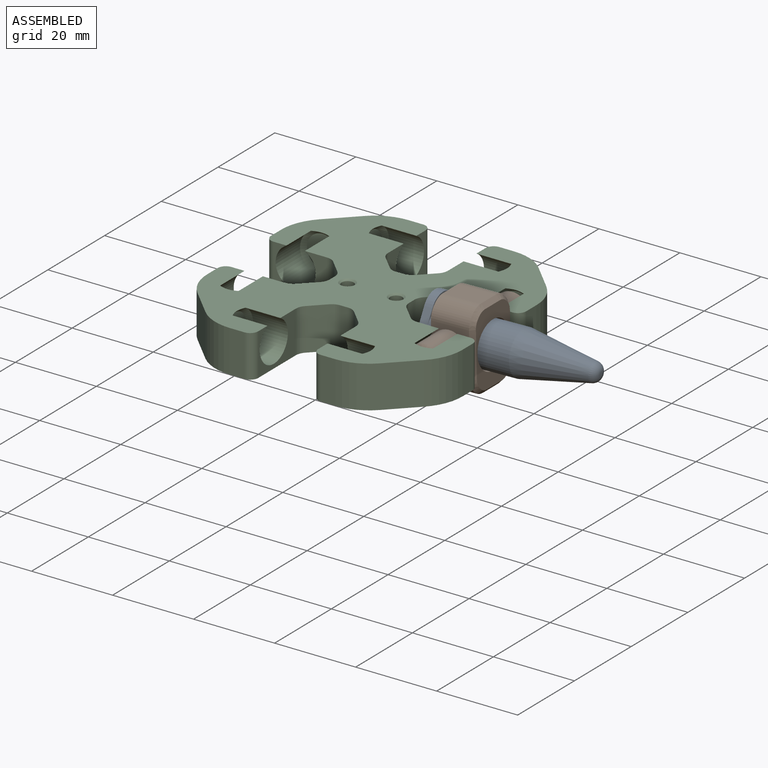
[diagram: assembled view]
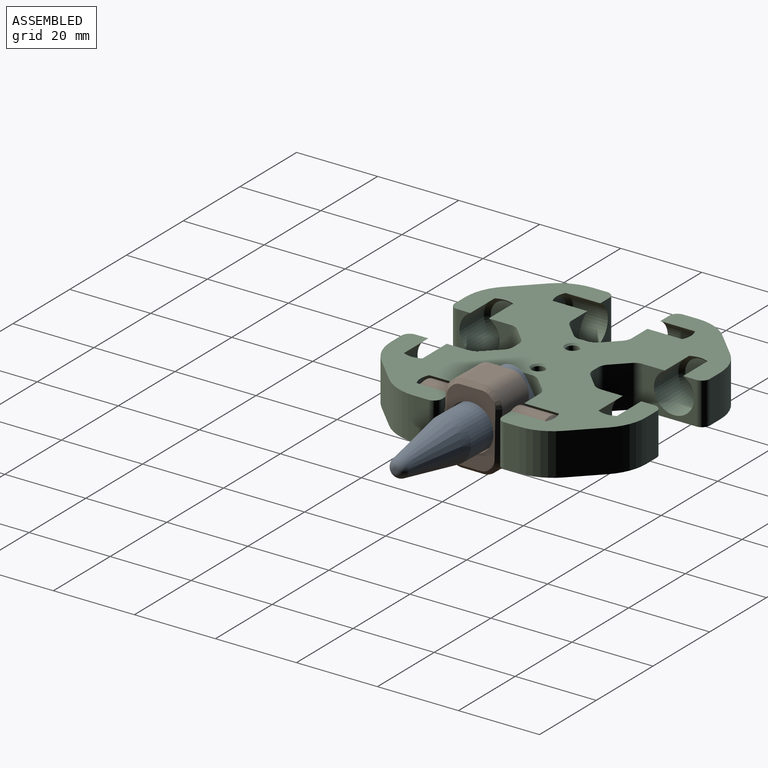
[diagram: assembled view, second angle]
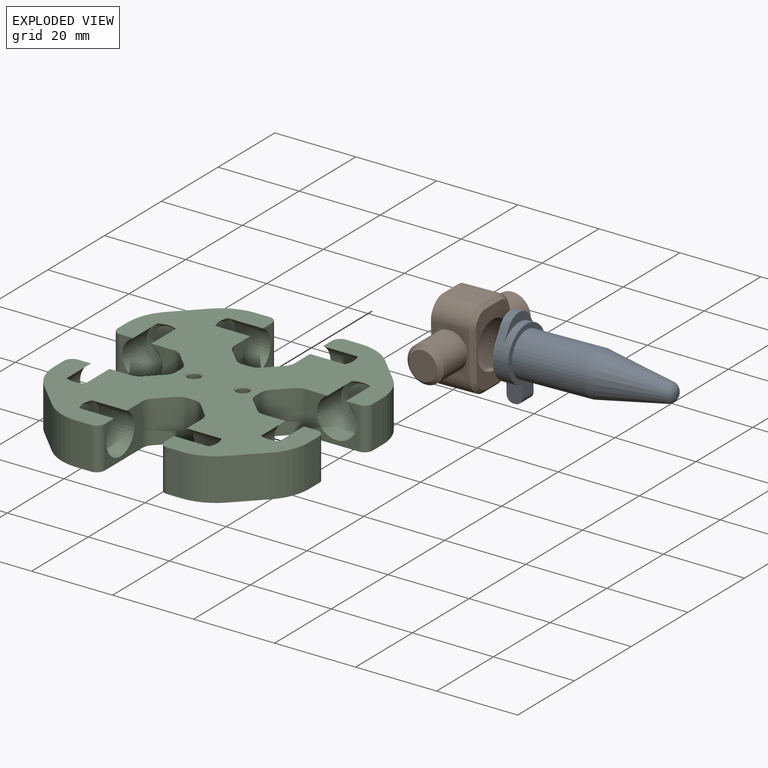
[diagram: exploded view]
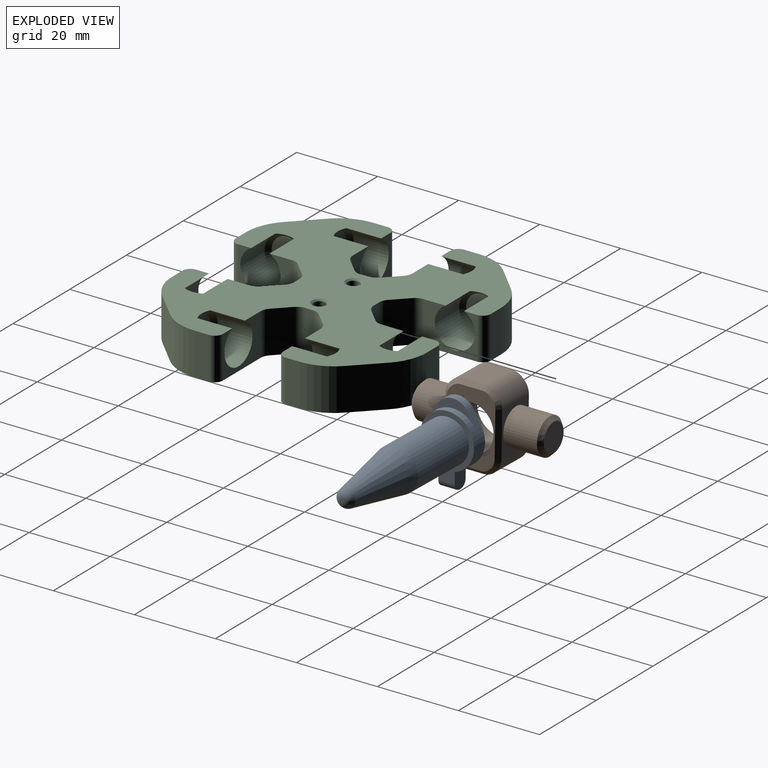
[diagram: exploded view, second angle]
ASSEMBLY  parts=3 mates=2
PART A: 16 faces, bbox 13.3x19.6x40.9 mm
  f0: cylinder r=6.65mm len=13.3mm, axis (0,0,-1), area 117.3mm2, adj f2,f3,f4,f5,f8,f9,f10
  f1: cylinder r=4.42mm len=7.62mm, axis (0,0,-1), area 19mm2, adj f2,f3,f4,f8
  f2: plane 3.28x2.07mm, normal (-0.86,0.51,0), area 7.9mm2, adj f0,f1,f4,f8
  f3: plane 3.28x2.07mm, normal (0.86,0.51,0), area 7.9mm2, adj f0,f1,f4,f8
  f4: plane 17.9x13.3mm, normal (0,0,1), area 165.5mm2, adj f0,f1,f2,f3,f9,f10,f13
  f5: plane 15.72x13.3mm, normal (0,0,-1), area 57.8mm2, adj f0,f6,f9,f10,f12
  f6: cylinder r=5.39mm len=18mm, axis (0,0,1), area 609.6mm2, adj f5,f14
  f7: plane 0.72x0.72mm, normal (0,0,-1), area 0.4mm2, adj f15
  f8: plane 11.47x5.46mm, normal (0,0,-1), area 16.4mm2, adj f0,f1,f2,f3
  f9: plane 4.42x3.87mm, normal (1,0,0), area 15.9mm2, adj f0,f4,f5,f11,f12,f13
  f10: plane 4.42x3.87mm, normal (-1,0,0), area 15.9mm2, adj f0,f4,f5,f11,f12,f13
  f11: plane 4.01x0.49mm, normal (0,-1,0), area 2mm2, adj f9,f10,f12,f13
  f12: cylinder r=1.69mm len=4.01mm, axis (1,0,0), area 10.6mm2, adj f5,f9,f10,f11
  f13: cylinder r=1.69mm len=4.01mm, axis (1,0,0), area 10.6mm2, adj f4,f9,f10,f11
  f14: cone r=5.39mm half-angle=10deg, axis (0,0,1), area 427.3mm2, adj f6,f15
  f15: torus R=0.36mm, axis (0,0,1), area 27.1mm2, adj f7,f14
PART B: 41 faces, bbox 32.7x19.9x10.6 mm
  f0: cylinder r=4.5mm len=9mm, axis (-1,0,0), area 218.9mm2, adj f2,f3,f16
  f1: plane 7x7mm, normal (1,0,0), area 38.5mm2, adj f16
  f2: plane 30.88x19.87mm, normal (0,0,-1), area 191.2mm2, adj f0,f3,f4,f5,f6,f9,f10,f11
  f3: plane 11.09x9.4mm, normal (1,0,0), area 40.7mm2, adj f0,f2,f19,f20,f33
  f4: plane 9.4x5.29mm, normal (0,1,0), area 49.7mm2, adj f2,f17,f18,f25
  f5: plane 11.09x9.4mm, normal (-1,0,0), area 40.7mm2, adj f2,f9,f23,f24,f32
  f6: plane 9.4x5.29mm, normal (0,-1,0), area 49.7mm2, adj f2,f21,f22,f40
  f7: plane 17.8x12mm, normal (0,0,1), area 102.8mm2, adj f10,f25,f26,f27,f28,f29,f30,f31
  f8: plane 7x7mm, normal (-1,0,0), area 38.5mm2, adj f15
  f9: cylinder r=4.5mm len=9mm, axis (-1,0,0), area 218.9mm2, adj f2,f5,f15
  f10: cylinder r=5.65mm len=11.3mm, axis (0,0,1), area 369.2mm2, adj f2,f7
  f11: plane 9.4x0.36mm, normal (-0.71,-0.71,0), area 4.7mm2, adj f2,f21,f23,f36
  f12: plane 9.4x0.36mm, normal (0.71,-0.71,0), area 4.7mm2, adj f2,f19,f22,f37
  f13: plane 9.4x0.36mm, normal (0.71,0.71,0), area 4.7mm2, adj f2,f17,f20,f29
  f14: plane 9.4x0.36mm, normal (-0.71,0.71,0), area 4.7mm2, adj f2,f18,f24,f28
  f15: cone r=4.5mm half-angle=45deg, axis (1,0,0), area 35.4mm2, adj f2,f8,f9
  f16: cone r=3.5mm half-angle=45deg, axis (-1,0,0), area 35.4mm2, adj f0,f1,f2
  f17: cylinder r=4mm len=9.4mm, axis (0,0,-1), area 29.5mm2, adj f2,f4,f13,f27
  f18: cylinder r=4mm len=9.4mm, axis (0,0,-1), area 29.5mm2, adj f2,f4,f14,f26
  f19: cylinder r=4mm len=9.4mm, axis (0,0,1), area 29.5mm2, adj f2,f3,f12,f35
  f20: cylinder r=4mm len=9.4mm, axis (0,0,1), area 29.5mm2, adj f2,f3,f13,f31
  f21: cylinder r=4mm len=9.4mm, axis (0,0,1), area 29.5mm2, adj f2,f6,f11,f38
  f22: cylinder r=4mm len=9.4mm, axis (0,0,1), area 29.5mm2, adj f2,f6,f12,f39
  f23: cylinder r=4mm len=9.4mm, axis (0,0,-1), area 29.5mm2, adj f2,f5,f11,f34
  f24: cylinder r=4mm len=9.4mm, axis (0,0,-1), area 29.5mm2, adj f2,f5,f14,f30
  f25: plane 5.29x1mm, normal (0,0.71,0.71), area 7.5mm2, adj f4,f7,f26,f27
  f26: cone r=3mm half-angle=45deg, axis (0,0,-1), area 3.9mm2, adj f7,f18,f25,f28
  f27: cone r=3mm half-angle=45deg, axis (0,0,-1), area 3.9mm2, adj f7,f17,f25,f29
  f28: plane 1.06x1.06mm, normal (-0.5,0.5,0.71), area 0.7mm2, adj f7,f14,f26,f30
  f29: plane 1.06x1.06mm, normal (0.5,0.5,0.71), area 0.7mm2, adj f7,f13,f27,f31
  f30: cone r=3mm half-angle=45deg, axis (0,0,-1), area 3.9mm2, adj f7,f24,f28,f32
  f31: cone r=3mm half-angle=45deg, axis (0,0,-1), area 3.9mm2, adj f7,f20,f29,f33
  f32: plane 11.09x1mm, normal (-0.71,0,0.71), area 15.7mm2, adj f5,f7,f30,f34
  f33: plane 11.09x1mm, normal (0.71,0,0.71), area 15.7mm2, adj f3,f7,f31,f35
  f34: cone r=3mm half-angle=45deg, axis (0,0,-1), area 3.9mm2, adj f7,f23,f32,f36
  f35: cone r=3mm half-angle=45deg, axis (0,0,-1), area 3.9mm2, adj f7,f19,f33,f37
  f36: plane 1.06x1.06mm, normal (-0.5,-0.5,0.71), area 0.7mm2, adj f7,f11,f34,f38
  f37: plane 1.06x1.06mm, normal (0.5,-0.5,0.71), area 0.7mm2, adj f7,f12,f35,f39
  f38: cone r=3mm half-angle=45deg, axis (0,0,-1), area 3.9mm2, adj f7,f21,f36,f40
  f39: cone r=3mm half-angle=45deg, axis (0,0,-1), area 3.9mm2, adj f7,f22,f37,f40
  f40: plane 5.29x1mm, normal (0,-0.71,0.71), area 7.5mm2, adj f6,f7,f38,f39
PART C: 96 faces, bbox 63x63x11 mm
  f0: plane 63x63mm, normal (0,0,-1), area 2052.6mm2, adj f2,f3,f4,f5,f6,f7,f8,f9
  f1: plane 63x63mm, normal (0,0,1), area 2377.8mm2, adj f2,f4,f6,f7,f8,f9,f10,f15
  f2: plane 10.4x3.63mm, normal (0,-1,0), area 37.7mm2, adj f0,f1,f67,f78
  f3: cylinder r=4.95mm len=9.9mm, axis (-1,0,0), area 227mm2, adj f0,f6,f13
  f4: plane 10.4x3.63mm, normal (0,-1,0), area 37.7mm2, adj f0,f1,f66,f79
  f5: cylinder r=4.95mm len=9.9mm, axis (-1,0,0), area 227mm2, adj f0,f8,f14
  f6: plane 13.23x10.4mm, normal (-1,0,0), area 62.3mm2, adj f0,f1,f3,f79,f93
  f7: plane 10.4x1.87mm, normal (0,-1,0), area 19.4mm2, adj f0,f1,f94,f95
  f8: plane 13.23x10.4mm, normal (1,0,0), area 62.3mm2, adj f0,f1,f5,f78,f92
  f9: plane 10.4x3.47mm, normal (-0.71,-0.71,0), area 51mm2, adj f0,f1,f93,f94
  f10: plane 10.4x3.47mm, normal (0.71,-0.71,0), area 51mm2, adj f0,f1,f92,f95
  f11: plane 7.9x7.9mm, normal (1,0,0), area 49mm2, adj f14
  f12: plane 7.9x7.9mm, normal (-1,0,0), area 49mm2, adj f13
  f13: cone r=4.95mm half-angle=45deg, axis (-1,0,0), area 37.2mm2, adj f0,f3,f12
  f14: cone r=3.95mm half-angle=45deg, axis (1,0,0), area 37.2mm2, adj f0,f5,f11
  f15: plane 10.4x3.63mm, normal (-1,0,0), area 37.7mm2, adj f0,f1,f65,f76
  f16: cylinder r=4.95mm len=9.9mm, axis (0,1,0), area 227mm2, adj f0,f19,f26
  f17: plane 10.4x3.63mm, normal (-1,0,0), area 37.7mm2, adj f0,f1,f64,f77
  f18: cylinder r=4.95mm len=9.9mm, axis (0,1,0), area 227mm2, adj f0,f21,f27
  f19: plane 13.23x10.4mm, normal (0,1,0), area 62.3mm2, adj f0,f1,f16,f77,f88
  f20: plane 10.4x1.87mm, normal (-1,0,0), area 19.4mm2, adj f0,f1,f90,f91
  f21: plane 13.23x10.4mm, normal (0,-1,0), area 62.3mm2, adj f0,f1,f18,f76,f89
  f22: plane 10.4x3.47mm, normal (-0.71,0.71,0), area 51mm2, adj f0,f1,f88,f91
  f23: plane 10.4x3.47mm, normal (-0.71,-0.71,0), area 51mm2, adj f0,f1,f89,f90
  f24: plane 7.9x7.9mm, normal (0,-1,0), area 49mm2, adj f27
  f25: plane 7.9x7.9mm, normal (0,1,0), area 49mm2, adj f26
  f26: cone r=4.95mm half-angle=45deg, axis (0,1,0), area 37.2mm2, adj f0,f16,f25
  f27: cone r=3.95mm half-angle=45deg, axis (0,-1,0), area 37.2mm2, adj f0,f18,f24
  f28: plane 10.4x3.63mm, normal (0,1,0), area 37.7mm2, adj f0,f1,f63,f74
  f29: cylinder r=4.95mm len=9.9mm, axis (1,0,0), area 227mm2, adj f0,f32,f39
  f30: plane 10.4x3.63mm, normal (0,1,0), area 37.7mm2, adj f0,f1,f62,f75
  f31: cylinder r=4.95mm len=9.9mm, axis (1,0,0), area 227mm2, adj f0,f34,f40
  f32: plane 13.23x10.4mm, normal (1,0,0), area 62.3mm2, adj f0,f1,f29,f75,f84
  f33: plane 10.4x1.87mm, normal (0,1,0), area 19.4mm2, adj f0,f1,f86,f87
  f34: plane 13.23x10.4mm, normal (-1,0,0), area 62.3mm2, adj f0,f1,f31,f74,f85
  f35: plane 10.4x3.47mm, normal (0.71,0.71,0), area 51mm2, adj f0,f1,f84,f87
  f36: plane 10.4x3.47mm, normal (-0.71,0.71,0), area 51mm2, adj f0,f1,f85,f86
  f37: plane 7.9x7.9mm, normal (-1,0,0), area 49mm2, adj f40
  f38: plane 7.9x7.9mm, normal (1,0,0), area 49mm2, adj f39
  f39: cone r=4.95mm half-angle=45deg, axis (1,0,0), area 37.2mm2, adj f0,f29,f38
  f40: cone r=3.95mm half-angle=45deg, axis (-1,0,0), area 37.2mm2, adj f0,f31,f37
  f41: plane 10.4x3.63mm, normal (1,0,0), area 37.7mm2, adj f0,f1,f61,f72
  f42: cylinder r=4.95mm len=9.9mm, axis (0,-1,0), area 227mm2, adj f0,f45,f52
  f43: plane 10.4x3.63mm, normal (1,0,0), area 37.7mm2, adj f0,f1,f60,f73
  f44: cylinder r=4.95mm len=9.9mm, axis (0,-1,0), area 227mm2, adj f0,f47,f53
  f45: plane 13.23x10.4mm, normal (0,-1,0), area 62.3mm2, adj f0,f1,f42,f73,f80
  f46: plane 10.4x1.87mm, normal (1,0,0), area 19.4mm2, adj f0,f1,f82,f83
  f47: plane 13.23x10.4mm, normal (0,1,0), area 62.3mm2, adj f0,f1,f44,f72,f81
  f48: plane 10.4x3.47mm, normal (0.71,-0.71,0), area 51mm2, adj f0,f1,f80,f83
  f49: plane 10.4x3.47mm, normal (0.71,0.71,0), area 51mm2, adj f0,f1,f81,f82
  f50: plane 7.9x7.9mm, normal (0,1,0), area 49mm2, adj f53
  f51: plane 7.9x7.9mm, normal (0,-1,0), area 49mm2, adj f52
  f52: cone r=4.95mm half-angle=45deg, axis (0,-1,0), area 37.2mm2, adj f0,f42,f51
  f53: cone r=3.95mm half-angle=45deg, axis (0,1,0), area 37.2mm2, adj f0,f44,f50
  f54: plane 10.4x6.47mm, normal (0.71,-0.71,0), area 95.2mm2, adj f0,f1,f61,f66
  f55: plane 10.4x6.47mm, normal (-0.71,-0.71,0), area 95.2mm2, adj f0,f1,f64,f67
  f56: plane 10.4x6.47mm, normal (-0.71,0.71,0), area 95.2mm2, adj f0,f1,f62,f65
  f57: plane 10.4x6.47mm, normal (0.71,0.71,0), area 95.2mm2, adj f0,f1,f60,f63
  f58: cylinder r=1.5mm len=9.6mm, axis (0,0,1), area 90.5mm2, adj f68,f71
  f59: cylinder r=1.5mm len=9.6mm, axis (0,0,1), area 90.5mm2, adj f69,f70
  f60: cylinder r=12mm len=10.4mm, axis (0,0,1), area 98mm2, adj f0,f1,f43,f57
  f61: cylinder r=12mm len=10.4mm, axis (0,0,1), area 98mm2, adj f0,f1,f41,f54
  f62: cylinder r=12mm len=10.4mm, axis (0,0,1), area 98mm2, adj f0,f1,f30,f56
  f63: cylinder r=12mm len=10.4mm, axis (0,0,1), area 98mm2, adj f0,f1,f28,f57
  f64: cylinder r=12mm len=10.4mm, axis (0,0,1), area 98mm2, adj f0,f1,f17,f55
  f65: cylinder r=12mm len=10.4mm, axis (0,0,1), area 98mm2, adj f0,f1,f15,f56
  f66: cylinder r=12mm len=10.4mm, axis (0,0,1), area 98mm2, adj f0,f1,f4,f54
  f67: cylinder r=12mm len=10.4mm, axis (0,0,1), area 98mm2, adj f0,f1,f2,f55
  f68: cone r=1.5mm half-angle=45deg, axis (0,0,-1), area 6mm2, adj f0,f58
  f69: cone r=1.9mm half-angle=45deg, axis (0,0,-1), area 6mm2, adj f0,f59
  f70: cone r=1.5mm half-angle=45deg, axis (0,0,1), area 6mm2, adj f1,f59
  f71: cone r=1.9mm half-angle=45deg, axis (0,0,1), area 6mm2, adj f1,f58
  f72: cylinder r=2mm len=10.4mm, axis (0,0,-1), area 32.7mm2, adj f0,f1,f41,f47
  f73: cylinder r=2mm len=10.4mm, axis (0,0,1), area 32.7mm2, adj f0,f1,f43,f45
  f74: cylinder r=2mm len=10.4mm, axis (0,0,-1), area 32.7mm2, adj f0,f1,f28,f34
  f75: cylinder r=2mm len=10.4mm, axis (0,0,1), area 32.7mm2, adj f0,f1,f30,f32
  f76: cylinder r=2mm len=10.4mm, axis (0,0,-1), area 32.7mm2, adj f0,f1,f15,f21
  f77: cylinder r=2mm len=10.4mm, axis (0,0,1), area 32.7mm2, adj f0,f1,f17,f19
  f78: cylinder r=2mm len=10.4mm, axis (0,0,-1), area 32.7mm2, adj f0,f1,f2,f8
  f79: cylinder r=2mm len=10.4mm, axis (0,0,1), area 32.7mm2, adj f0,f1,f4,f6
  f80: cylinder r=3mm len=10.4mm, axis (0,0,1), area 24.5mm2, adj f0,f1,f45,f48
  f81: cylinder r=3mm len=10.4mm, axis (0,0,-1), area 24.5mm2, adj f0,f1,f47,f49
  f82: cylinder r=3mm len=10.4mm, axis (0,0,-1), area 24.5mm2, adj f0,f1,f46,f49
  f83: cylinder r=3mm len=10.4mm, axis (0,0,-1), area 24.5mm2, adj f0,f1,f46,f48
  f84: cylinder r=3mm len=10.4mm, axis (0,0,1), area 24.5mm2, adj f0,f1,f32,f35
  f85: cylinder r=3mm len=10.4mm, axis (0,0,-1), area 24.5mm2, adj f0,f1,f34,f36
  f86: cylinder r=3mm len=10.4mm, axis (0,0,-1), area 24.5mm2, adj f0,f1,f33,f36
  f87: cylinder r=3mm len=10.4mm, axis (0,0,-1), area 24.5mm2, adj f0,f1,f33,f35
  f88: cylinder r=3mm len=10.4mm, axis (0,0,1), area 24.5mm2, adj f0,f1,f19,f22
  f89: cylinder r=3mm len=10.4mm, axis (0,0,-1), area 24.5mm2, adj f0,f1,f21,f23
  f90: cylinder r=3mm len=10.4mm, axis (0,0,-1), area 24.5mm2, adj f0,f1,f20,f23
  f91: cylinder r=3mm len=10.4mm, axis (0,0,-1), area 24.5mm2, adj f0,f1,f20,f22
  f92: cylinder r=3mm len=10.4mm, axis (0,0,-1), area 24.5mm2, adj f0,f1,f8,f10
  f93: cylinder r=3mm len=10.4mm, axis (0,0,1), area 24.5mm2, adj f0,f1,f6,f9
  f94: cylinder r=3mm len=10.4mm, axis (0,0,-1), area 24.5mm2, adj f0,f1,f7,f9
  f95: cylinder r=3mm len=10.4mm, axis (0,0,-1), area 24.5mm2, adj f0,f1,f7,f10
PLACE A rot(axis=(0.58,-0.58,-0.57),120.8deg) t=(25.04,0,19.63)mm
PLACE B rot(axis=(-0.57,0.57,-0.59),119.2deg) t=(24.56,0,-28.39)mm
PLACE C rot(axis=(0.71,-0.71,0),180deg) t=(0,0,-4.4)mm
MATE revolute B.f0 <-> C.f3  axis (0,1,0) through (24,0,-4.4)mm
MATE fastened A.f6 <-> B.f10  axis (1,0,0.02) through (19.6,0,-4.5)mm
